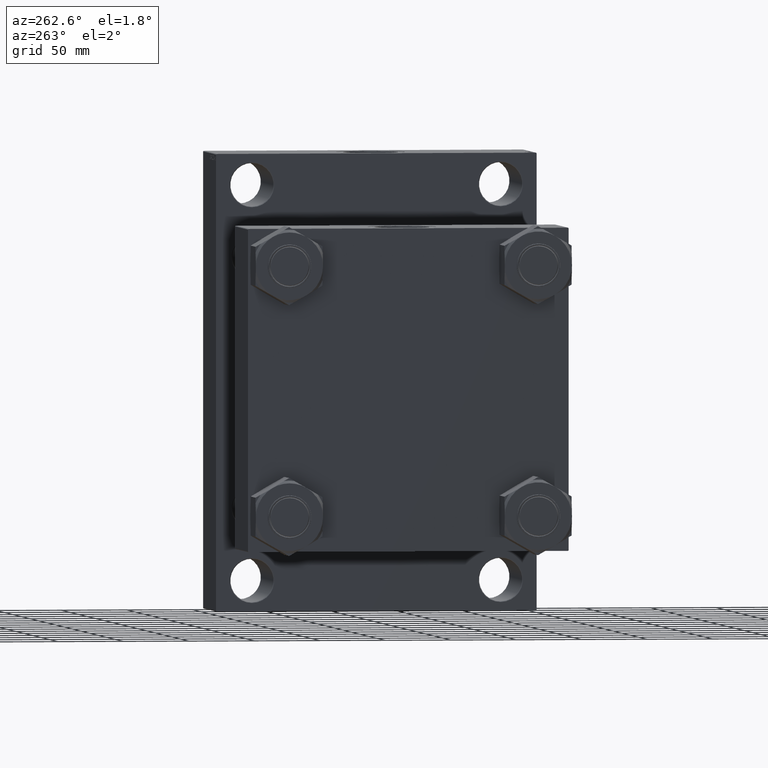
[diagram: clean part render]
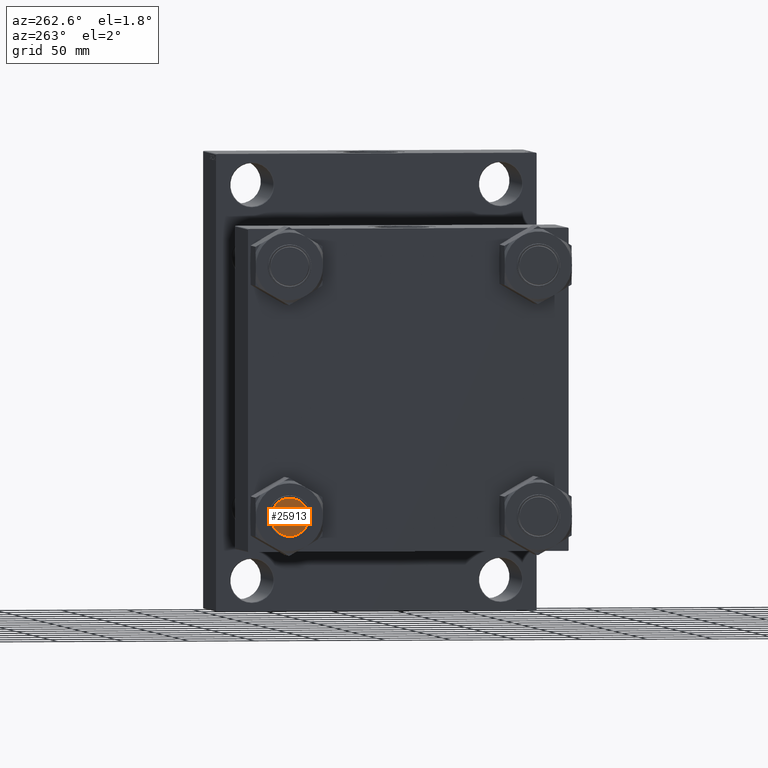
[diagram: same view with one face highlighted and labeled with its STEP entity id]
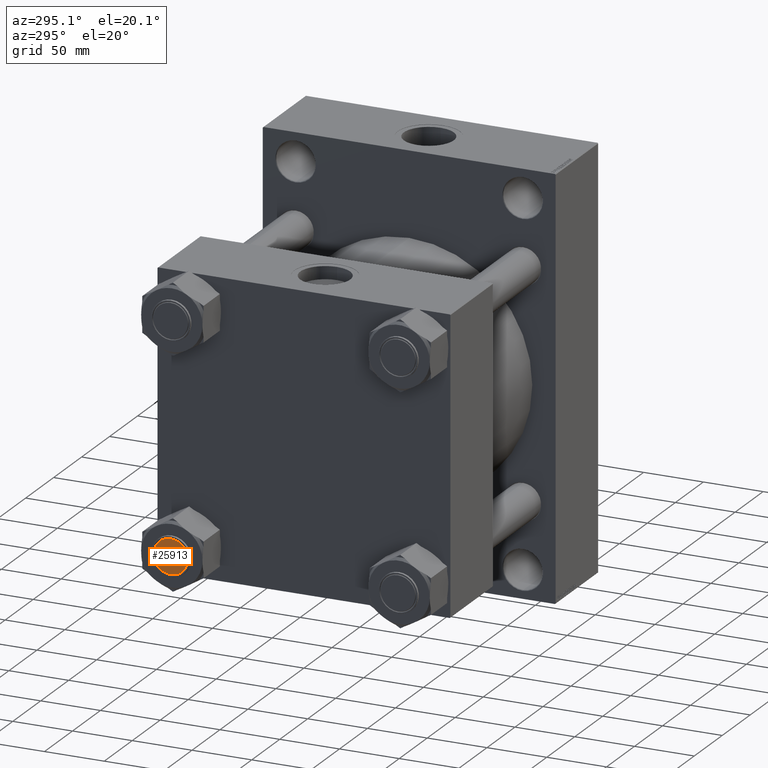
[diagram: same view with one face highlighted and labeled with its STEP entity id]
A machine part, auxiliary view. The second image highlights one B-rep face of the part: STEP entity #25913.
A second angle (auxiliary view) of the same face is appended — the face is thin or edge-on in the first view.
In plain terms, the highlighted planar face has unit normal (1, 0, 0).
Its self-contained STEP definition (entity closure, byte-faithful):
#657 = ORIENTED_EDGE ( 'NONE', *, *, #5025, .T. ) ;
#2739 = FACE_OUTER_BOUND ( 'NONE', #46343, .T. ) ;
#3056 = AXIS2_PLACEMENT_3D ( 'NONE', #27827, #31677, #9517 ) ;
#5025 = EDGE_CURVE ( 'NONE', #13652, #31090, #16191, .T. ) ;
#6813 = DIRECTION ( 'NONE',  ( 0.000000000000000000, 0.000000000000000000, 1.000000000000000000 ) ) ;
#8019 = AXIS2_PLACEMENT_3D ( 'NONE', #41030, #22951, #37414 ) ;
#9517 = DIRECTION ( 'NONE',  ( 1.000000000000000000, 0.000000000000000000, 0.000000000000000000 ) ) ;
#11403 = ORIENTED_EDGE ( 'NONE', *, *, #21081, .T. ) ;
#13652 = VERTEX_POINT ( 'NONE', #14741 ) ;
#14032 = DIRECTION ( 'NONE',  ( 1.000000000000000000, 0.000000000000000000, -0.000000000000000000 ) ) ;
#14741 = CARTESIAN_POINT ( 'NONE',  ( -14.49999999999978861, 1.806354028742332786E-15, 0.000000000000000000 ) ) ;
#16191 = CIRCLE ( 'NONE', #3056, 14.49999999999978861 ) ;
#17410 = PLANE ( 'NONE',  #28969 ) ;
#20782 = CARTESIAN_POINT ( 'NONE',  ( 0.000000000000000000, 0.000000000000000000, 0.000000000000000000 ) ) ;
#21081 = EDGE_CURVE ( 'NONE', #31090, #13652, #41854, .T. ) ;
#21454 = CARTESIAN_POINT ( 'NONE',  ( 14.49999999999978861, 0.000000000000000000, 0.000000000000000000 ) ) ;
#22951 = DIRECTION ( 'NONE',  ( -0.000000000000000000, -0.000000000000000000, -1.000000000000000000 ) ) ;
#25913 = ADVANCED_FACE ( 'NONE', ( #2739 ), #17410, .F. ) ;
#27827 = CARTESIAN_POINT ( 'NONE',  ( 0.000000000000000000, 0.000000000000000000, 0.000000000000000000 ) ) ;
#28969 = AXIS2_PLACEMENT_3D ( 'NONE', #20782, #6813, #14032 ) ;
#31090 = VERTEX_POINT ( 'NONE', #21454 ) ;
#31677 = DIRECTION ( 'NONE',  ( -0.000000000000000000, -0.000000000000000000, -1.000000000000000000 ) ) ;
#37414 = DIRECTION ( 'NONE',  ( 1.000000000000000000, 0.000000000000000000, 0.000000000000000000 ) ) ;
#41030 = CARTESIAN_POINT ( 'NONE',  ( 0.000000000000000000, 0.000000000000000000, 0.000000000000000000 ) ) ;
#41854 = CIRCLE ( 'NONE', #8019, 14.49999999999978861 ) ;
#46343 = EDGE_LOOP ( 'NONE', ( #11403, #657 ) ) ;